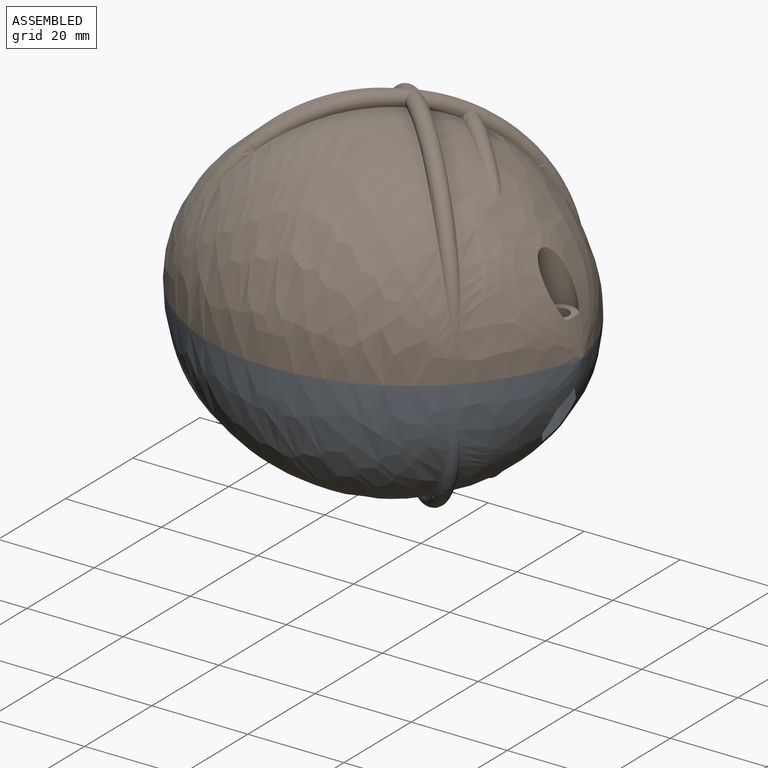
[diagram: assembled view]
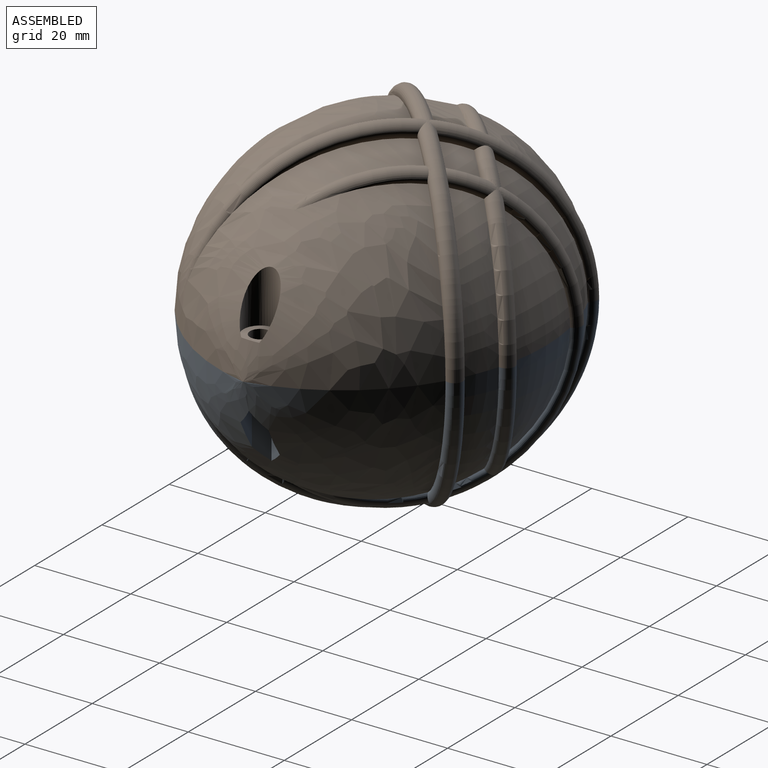
[diagram: assembled view, second angle]
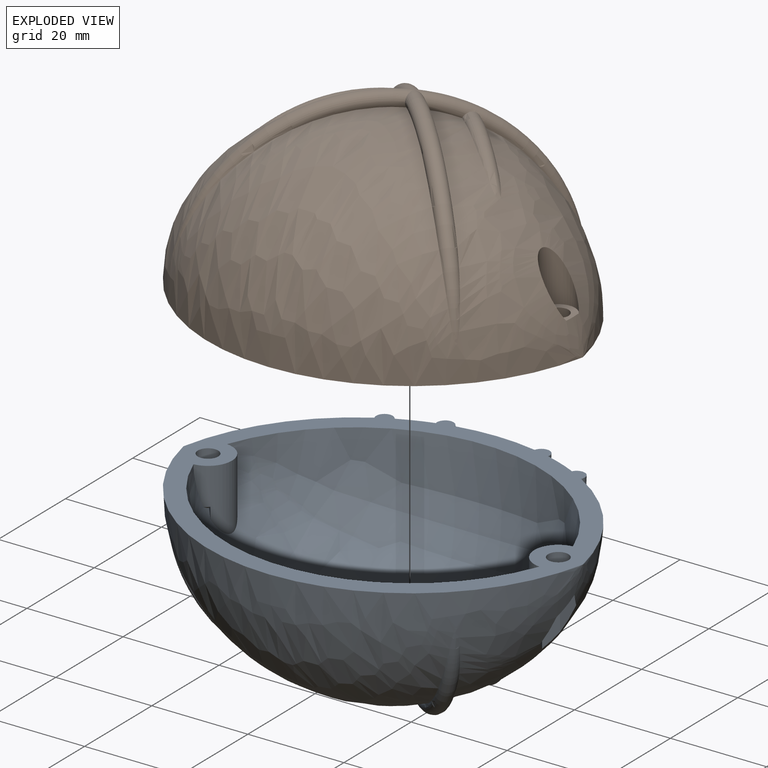
[diagram: exploded view]
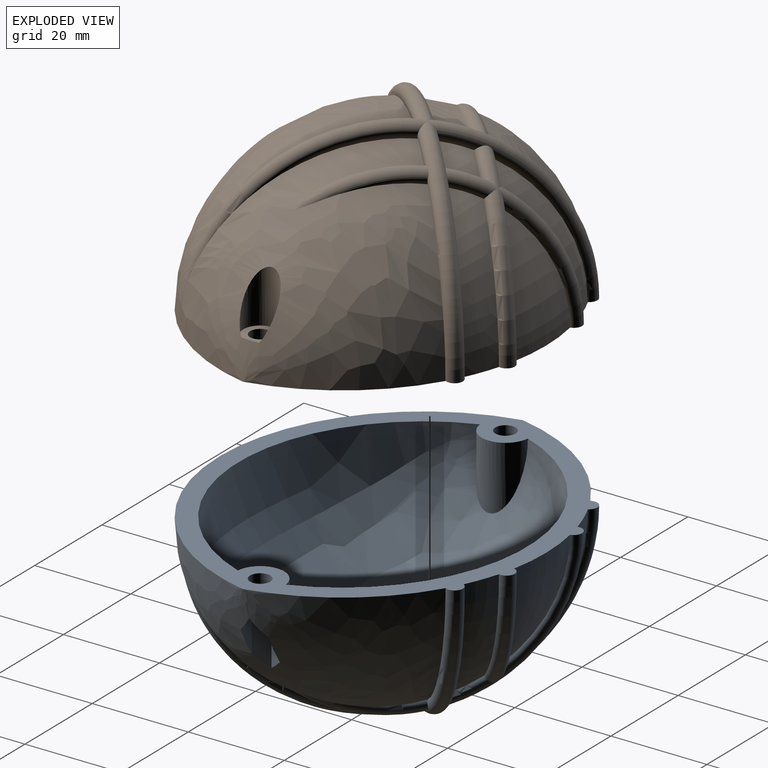
[diagram: exploded view, second angle]
ASSEMBLY  parts=2 mates=2
PART A: 36 faces, bbox 83.2x70.4x39.4 mm
  f0: revolved ~72.04x60mm, area 6061.3mm2, adj f2,f4,f22,f23,f31,f32,f33
  f1: revolved ~83.18x68mm, area 6061.2mm2, adj f3,f9,f12,f13,f14,f15,f16,f17
  f2: revolved ~1.88x1.32mm, area 1.3mm2, adj f0,f4,f33
  f3: plane 13.12x2.92mm, normal (-0.87,0.5,0), area 40.2mm2, adj f1,f15,f21,f25,f34,f35
  f4: cylinder r=5mm len=13.63mm, axis (0,0,-1), area 144.2mm2, adj f0,f2,f22,f33
  f5: revolved ~28.79x18.17mm, area 235.3mm2, adj f11,f22,f26,f29
  f6: revolved ~23.37x16.64mm, area 289.5mm2, adj f10,f22,f29
  f7: revolved ~10.15x9.99mm, area 56.9mm2, adj f9,f11,f26,f28
  f8: revolved ~28.79x18.17mm, area 235.3mm2, adj f9,f10,f22,f28
  f9: torus R=34.6mm, axis (-0.71,-0.71,0), area 316.1mm2, adj f1,f7,f8,f22,f26,f27,f28,f30
  f10: torus R=30.23mm, axis (-0.71,-0.71,0), area 172.8mm2, adj f6,f8,f22,f28,f29
  f11: torus R=30.23mm, axis (-0.71,-0.71,0), area 48.8mm2, adj f5,f7,f26,f28,f29
  f12: torus R=34.6mm, axis (-0.71,-0.71,0), area 290.4mm2, adj f1,f26,f27
  f13: torus R=30.23mm, axis (-0.71,-0.71,0), area 97.8mm2, adj f1,f26
  f14: plane 10.6x3.38mm, normal (0,-1,0), area 26.4mm2, adj f1,f16,f21,f25
  f15: plane 10.6x3.37mm, normal (0,1,0), area 26.4mm2, adj f1,f3,f17,f25
  f16: plane 4.7x2.92mm, normal (0.87,-0.5,0), area 10.4mm2, adj f1,f14,f17,f25
  f17: plane 4.7x2.92mm, normal (0.87,0.5,0), area 10.4mm2, adj f1,f15,f16,f25
  f18: cylinder r=3.5mm len=11.28mm, axis (0,0,1), area 122.1mm2, adj f1,f19
  f19: plane 7x6.56mm, normal (0,0,1), area 23.2mm2, adj f1,f18,f20
  f20: cylinder r=2.12mm len=7mm, axis (0,0,-1), area 93.5mm2, adj f19,f22
  f21: plane 13.12x2.92mm, normal (-0.87,-0.5,0), area 40.2mm2, adj f1,f3,f14,f25
  f22: plane 83.18x68.49mm, normal (0,0,-1), area 955.7mm2, adj f0,f1,f4,f5,f6,f8,f9,f10
  f23: cylinder r=5mm len=13.63mm, axis (0,0,-1), area 145.4mm2, adj f0,f22,f31,f32
  f24: cylinder r=2.12mm len=5mm, axis (0,0,-1), area 66.8mm2, adj f22,f25
  f25: plane 6.74x5.84mm, normal (0,0,1), area 15.3mm2, adj f3,f14,f15,f16,f17,f21,f24
  f26: torus R=34.6mm, axis (0.71,-0.71,0), area 316.1mm2, adj f1,f5,f7,f9,f11,f12,f13,f22
  f27: torus R=34.6mm, axis (0.71,-0.71,0), area 282mm2, adj f1,f9,f12
  f28: torus R=30.23mm, axis (0.71,-0.71,0), area 48.8mm2, adj f7,f8,f9,f10,f11
  f29: torus R=30.23mm, axis (0.71,-0.71,0), area 172.8mm2, adj f5,f6,f10,f11,f22
  f30: torus R=30.23mm, axis (0.71,-0.71,0), area 92.6mm2, adj f1,f9
  f31: revolved ~1.74x1.06mm, area 0.9mm2, adj f0,f23,f32
  f32: plane 2.42x1.01mm, normal (0.71,-0.71,0), area 1.7mm2, adj f0,f23,f31
  f33: plane 3.16x1.37mm, normal (-0.5,-0.87,0), area 2.4mm2, adj f0,f2,f4
  f34: plane 0.08x0.04mm, normal (0,0,1), area 0mm2, adj f1,f3,f35
  f35: plane 0.06x0.04mm, normal (-0.5,-0.87,0), area 0mm2, adj f1,f3,f34
PART B: same geometry as A
PLACE A rot(axis=(0,-1,0),180deg) t=(-6.97,1.64,-7.71)mm
PLACE B t=(-6.97,1.64,-7.71)mm fixed
MATE planar A.f22 <-> B.f22  axis (0,0,1) through (-6.97,2.25,-7.71)mm
MATE cylindrical B.f24 <-> A.f20  axis (0,0,-1) through (-43.44,1.64,-5.21)mm
